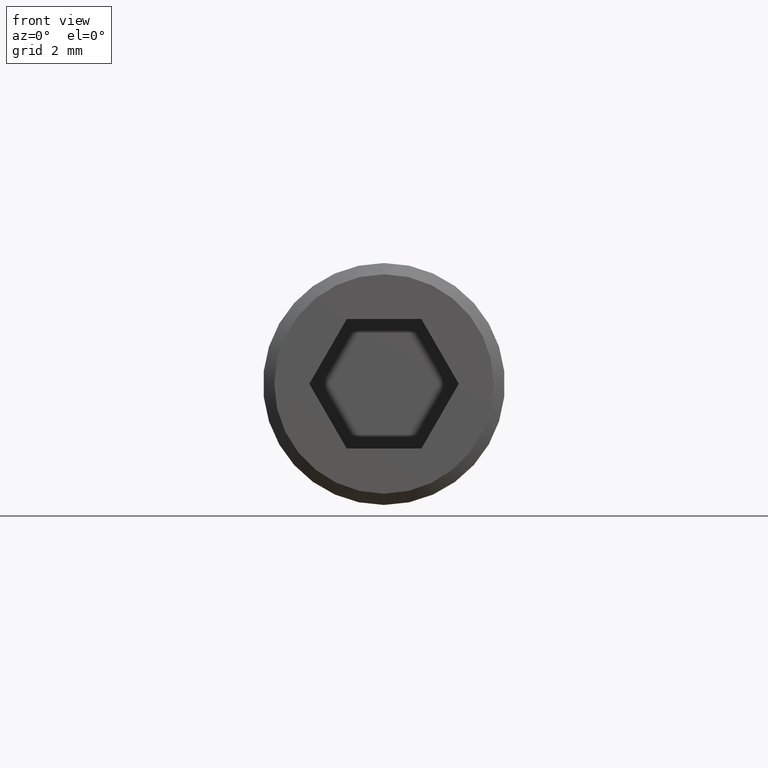
[diagram: clean part render]
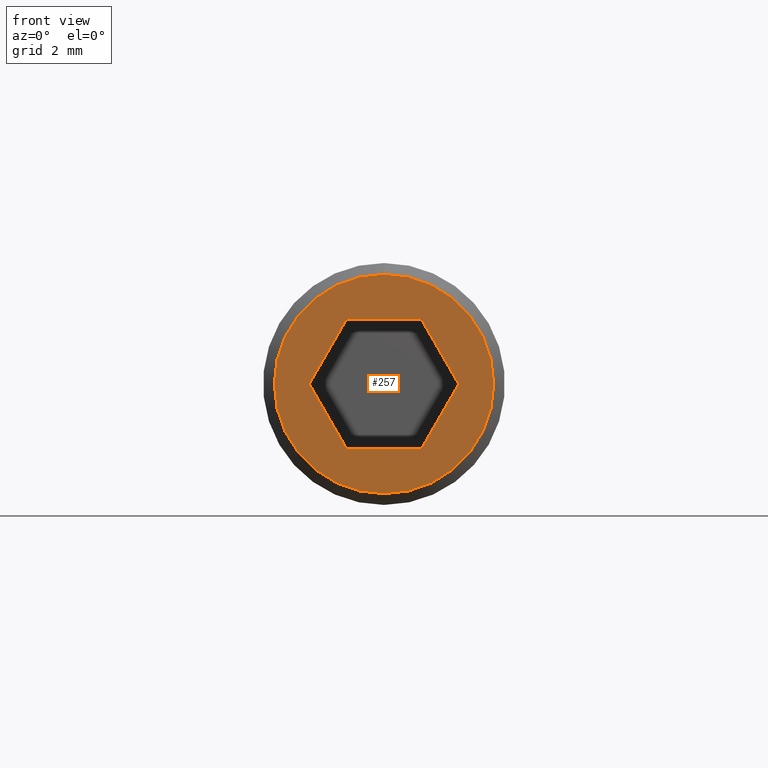
[diagram: same view with one face highlighted and labeled with its STEP entity id]
A machine part, front view. The second image highlights one B-rep face of the part: STEP entity #257.
In plain terms, the highlighted planar face has unit normal (0, 1, 0).
Its self-contained STEP definition (entity closure, byte-faithful):
#4 = VERTEX_POINT ( 'NONE', #877 ) ;
#5 = CARTESIAN_POINT ( 'NONE',  ( 0.0000000000000000000, 0.0000000000000000000, 0.0000000000000000000 ) ) ;
#14 = DIRECTION ( 'NONE',  ( -1.000000000000000000, 0.0000000000000000000, 1.632950650801259500E-016 ) ) ;
#22 = AXIS2_PLACEMENT_3D ( 'NONE', #5, #459, #895 ) ;
#28 = LINE ( 'NONE', #545, #885 ) ;
#30 = VERTEX_POINT ( 'NONE', #234 ) ;
#68 = CIRCLE ( 'NONE', #22, 1.950000000000000400 ) ;
#85 = AXIS2_PLACEMENT_3D ( 'NONE', #244, #487, #269 ) ;
#93 = CARTESIAN_POINT ( 'NONE',  ( 1.327905619136139100, 0.0000000000000000000, -3.659182332138577500E-016 ) ) ;
#99 = CARTESIAN_POINT ( 'NONE',  ( 0.0000000000000000000, 0.0000000000000000000, 0.0000000000000000000 ) ) ;
#103 = DIRECTION ( 'NONE',  ( -0.0000000000000000000, -1.000000000000000000, -0.0000000000000000000 ) ) ;
#112 = LINE ( 'NONE', #939, #650 ) ;
#114 = DIRECTION ( 'NONE',  ( 0.5000000000000000000, 0.0000000000000000000, 0.8660254037844386000 ) ) ;
#121 = VERTEX_POINT ( 'NONE', #683 ) ;
#142 = ORIENTED_EDGE ( 'NONE', *, *, #463, .F. ) ;
#144 = EDGE_CURVE ( 'NONE', #121, #30, #305, .T. ) ;
#158 = VERTEX_POINT ( 'NONE', #467 ) ;
#171 = VERTEX_POINT ( 'NONE', #538 ) ;
#178 = VECTOR ( 'NONE', #676, 1000.000000000000200 ) ;
#207 = DIRECTION ( 'NONE',  ( 1.000000000000000000, 0.0000000000000000000, -1.632950650801259500E-016 ) ) ;
#233 = EDGE_LOOP ( 'NONE', ( #826, #922, #142, #532, #782, #829 ) ) ;
#234 = CARTESIAN_POINT ( 'NONE',  ( 2.510525938252074200E-016, 0.0000000000000000000, -1.950000000000000400 ) ) ;
#236 = VERTEX_POINT ( 'NONE', #471 ) ;
#243 = VECTOR ( 'NONE', #839, 1000.000000000000000 ) ;
#244 = CARTESIAN_POINT ( 'NONE',  ( 0.0000000000000000000, 0.0000000000000000000, 0.0000000000000000000 ) ) ;
#246 = FACE_OUTER_BOUND ( 'NONE', #681, .T. ) ;
#247 = EDGE_CURVE ( 'NONE', #171, #236, #872, .T. ) ;
#248 = ORIENTED_EDGE ( 'NONE', *, *, #144, .T. ) ;
#257 = ADVANCED_FACE ( 'NONE', ( #246, #756 ), #533, .F. ) ;
#269 = DIRECTION ( 'NONE',  ( 0.0000000000000000000, -0.0000000000000000000, 1.000000000000000000 ) ) ;
#277 = VECTOR ( 'NONE', #499, 1000.000000000000000 ) ;
#305 = CIRCLE ( 'NONE', #327, 1.950000000000000400 ) ;
#314 = EDGE_CURVE ( 'NONE', #724, #171, #28, .T. ) ;
#327 = AXIS2_PLACEMENT_3D ( 'NONE', #99, #103, #540 ) ;
#330 = LINE ( 'NONE', #455, #767 ) ;
#349 = CARTESIAN_POINT ( 'NONE',  ( 0.6639528095680696800, 0.0000000000000000000, -1.149999999999999900 ) ) ;
#398 = VERTEX_POINT ( 'NONE', #935 ) ;
#448 = LINE ( 'NONE', #742, #243 ) ;
#455 = CARTESIAN_POINT ( 'NONE',  ( 0.6639528095680701200, 0.0000000000000000000, 1.149999999999999700 ) ) ;
#459 = DIRECTION ( 'NONE',  ( -0.0000000000000000000, -1.000000000000000000, -0.0000000000000000000 ) ) ;
#463 = EDGE_CURVE ( 'NONE', #398, #4, #480, .T. ) ;
#467 = CARTESIAN_POINT ( 'NONE',  ( -0.6639528095680701200, 0.0000000000000000000, -1.149999999999999900 ) ) ;
#471 = CARTESIAN_POINT ( 'NONE',  ( 0.6639528095680701200, 0.0000000000000000000, 1.149999999999999700 ) ) ;
#480 = LINE ( 'NONE', #634, #277 ) ;
#487 = DIRECTION ( 'NONE',  ( 0.0000000000000000000, 1.000000000000000000, 0.0000000000000000000 ) ) ;
#499 = DIRECTION ( 'NONE',  ( -0.4999999999999998900, 0.0000000000000000000, -0.8660254037844387100 ) ) ;
#532 = ORIENTED_EDGE ( 'NONE', *, *, #899, .F. ) ;
#533 = PLANE ( 'NONE',  #85 ) ;
#538 = CARTESIAN_POINT ( 'NONE',  ( 1.327905619136139100, 0.0000000000000000000, -3.659182332138577500E-016 ) ) ;
#540 = DIRECTION ( 'NONE',  ( 0.0000000000000000000, 0.0000000000000000000, 1.000000000000000000 ) ) ;
#545 = CARTESIAN_POINT ( 'NONE',  ( 0.6639528095680696800, 0.0000000000000000000, -1.149999999999999900 ) ) ;
#634 = CARTESIAN_POINT ( 'NONE',  ( -0.6639528095680696800, 0.0000000000000000000, 1.149999999999999900 ) ) ;
#650 = VECTOR ( 'NONE', #207, 1000.000000000000000 ) ;
#654 = EDGE_CURVE ( 'NONE', #4, #158, #448, .T. ) ;
#676 = DIRECTION ( 'NONE',  ( -0.4999999999999995600, 0.0000000000000000000, 0.8660254037844388200 ) ) ;
#681 = EDGE_LOOP ( 'NONE', ( #248, #753 ) ) ;
#683 = CARTESIAN_POINT ( 'NONE',  ( 0.0000000000000000000, 0.0000000000000000000, 1.950000000000000400 ) ) ;
#724 = VERTEX_POINT ( 'NONE', #349 ) ;
#727 = EDGE_CURVE ( 'NONE', #158, #724, #112, .T. ) ;
#742 = CARTESIAN_POINT ( 'NONE',  ( -1.327905619136139100, 0.0000000000000000000, 0.0000000000000000000 ) ) ;
#753 = ORIENTED_EDGE ( 'NONE', *, *, #937, .T. ) ;
#756 = FACE_BOUND ( 'NONE', #233, .T. ) ;
#767 = VECTOR ( 'NONE', #14, 1000.000000000000000 ) ;
#782 = ORIENTED_EDGE ( 'NONE', *, *, #247, .F. ) ;
#826 = ORIENTED_EDGE ( 'NONE', *, *, #727, .F. ) ;
#829 = ORIENTED_EDGE ( 'NONE', *, *, #314, .F. ) ;
#839 = DIRECTION ( 'NONE',  ( 0.4999999999999997200, -0.0000000000000000000, -0.8660254037844388200 ) ) ;
#872 = LINE ( 'NONE', #93, #178 ) ;
#877 = CARTESIAN_POINT ( 'NONE',  ( -1.327905619136139100, 0.0000000000000000000, 0.0000000000000000000 ) ) ;
#885 = VECTOR ( 'NONE', #114, 1000.000000000000200 ) ;
#895 = DIRECTION ( 'NONE',  ( 0.0000000000000000000, 0.0000000000000000000, 1.000000000000000000 ) ) ;
#899 = EDGE_CURVE ( 'NONE', #236, #398, #330, .T. ) ;
#922 = ORIENTED_EDGE ( 'NONE', *, *, #654, .F. ) ;
#935 = CARTESIAN_POINT ( 'NONE',  ( -0.6639528095680696800, 0.0000000000000000000, 1.149999999999999900 ) ) ;
#937 = EDGE_CURVE ( 'NONE', #30, #121, #68, .T. ) ;
#939 = CARTESIAN_POINT ( 'NONE',  ( -0.6639528095680701200, -0.0000000000000000000, -1.149999999999999700 ) ) ;